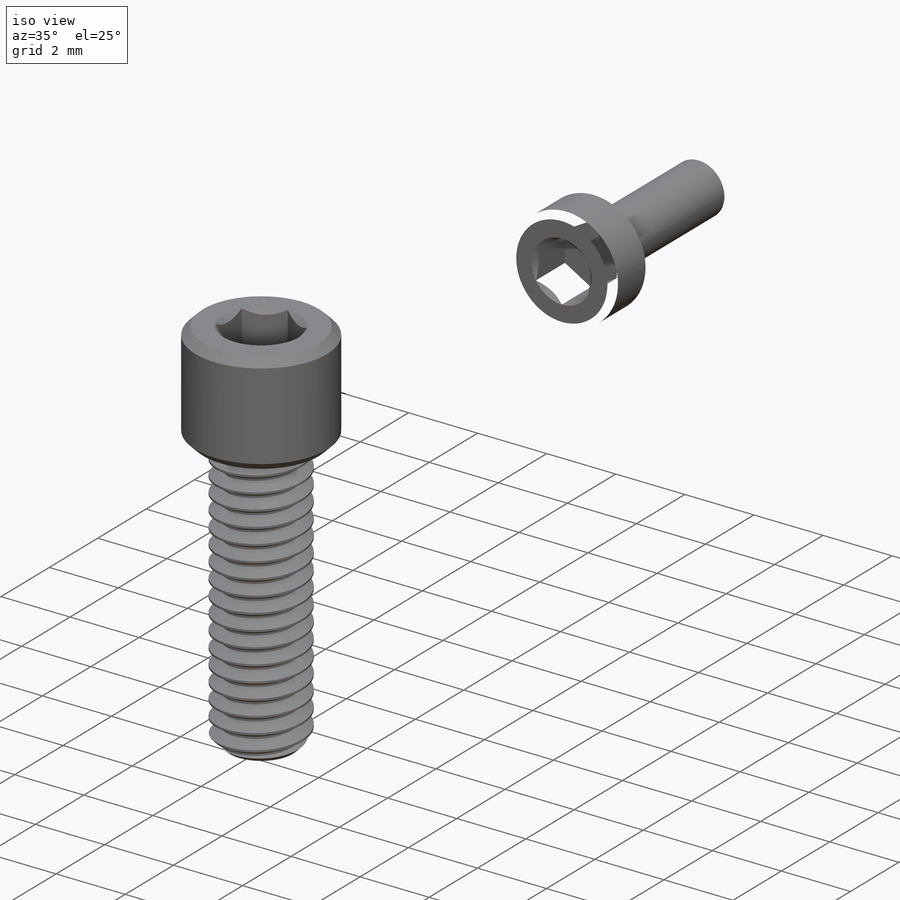
[diagram: iso view]
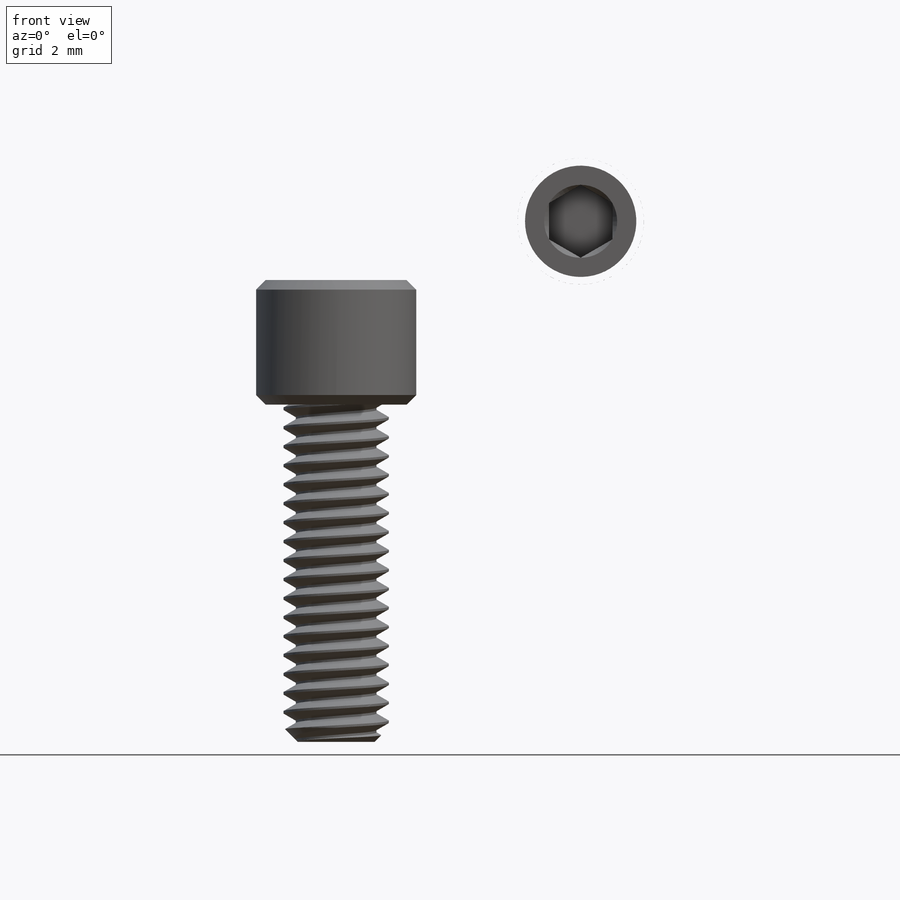
[diagram: front view]
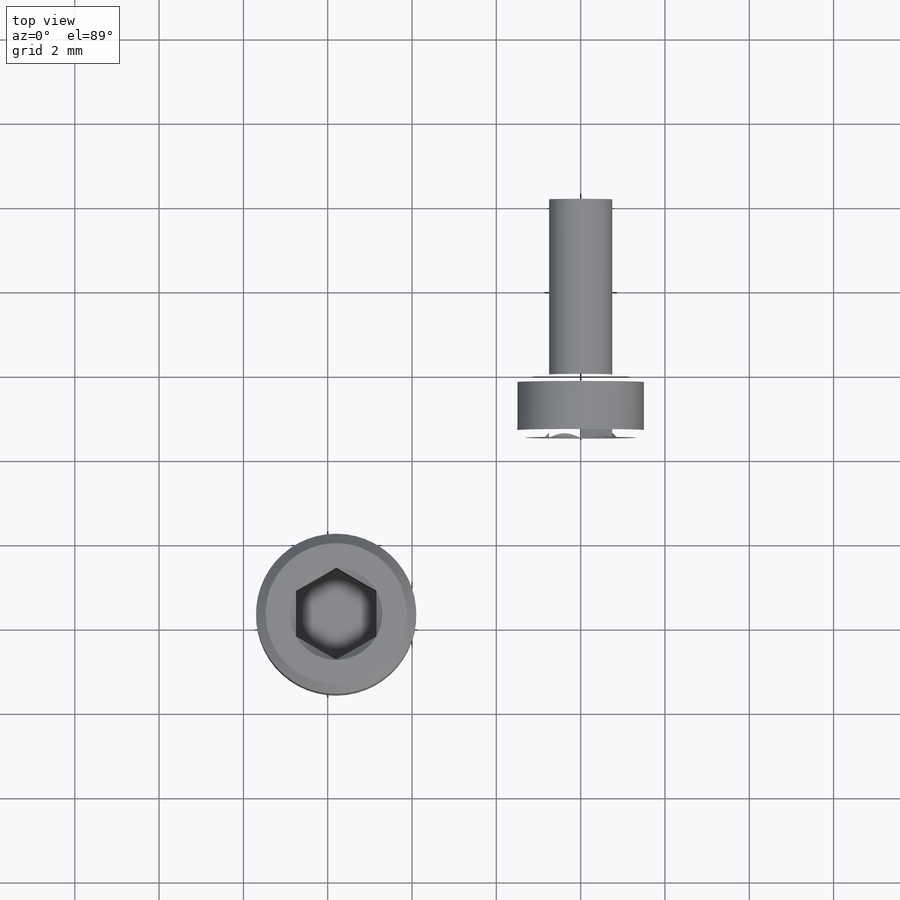
[diagram: top view]
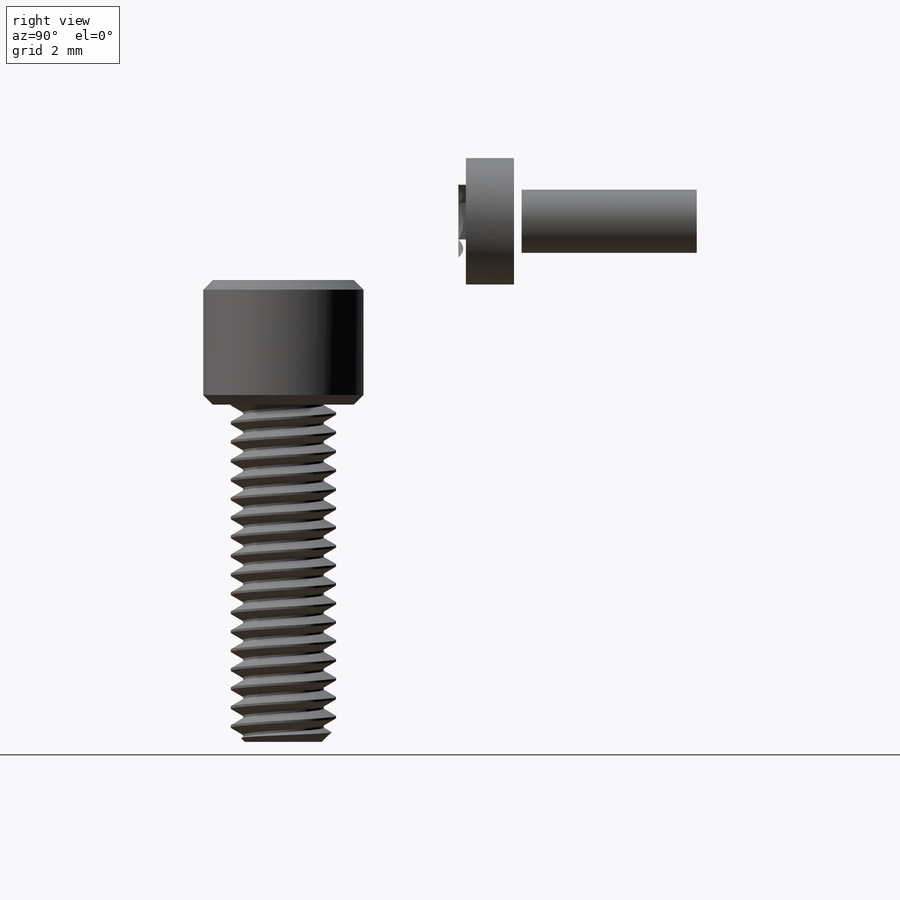
[diagram: right view]
SOLIDWORKS PART (.sldprt)
format: sldprt  version: not decoded by parser v0  size: 2,355,200 bytes
history: native  units: mm
features: sketch x32, cut_extrude x18, chamfer x11, extrude x5, plane x3, pattern_circular x3, cut_revolve x2, revolve x2, boolean_combine x2, pattern_linear x2, delete_body x2, material x1, helix x1, sweep x1 (+18 scaffold rows collapsed; 4 parser-record rows omitted)
feature tree (107):
  scaffold x18  (default folders/planes/origin — collapsed)
  material  "Material <not specified>"
  sketch  "Sketch1"  dims[Shaft dia A=5.0mm OD=19.05mm Shaft dia B=8.0mm bolt circle dia=14.0mm bolt head dia=3.0mm max inner bore=8.0mm OD small=35.56mm Shaft A small OD=19.05mm Shaft B small OD=19.05mm]
  sketch  "Sketch9"  dims[Lg=25.908mm Bore Lg=9.15mm middle hub Lg=5.5mm D1=1.054mm]
  sketch  "Sketch17"
  extrude  "Boss-Extrude1"  [1 undecoded]
  plane  "Plane2"  Offset=3.15mm screw offset=3.15mm
  parser-record x4  (decoder bookkeeping rows leaked as tree rows — omitted from the tree; the rows remain in map.json)
  sketch  "Sketch19"  dims[screw offset 3=2.65mm screw head dia=3.8mm screw dia=2.5mm screw offset 2=5.8mm D1=~2.956748mm D2=38.036mm]
  cut_revolve  "Cut-Revolve1"  Angle=360deg
  sketch  "Sketch21"  dims[screw length=8.0mm]
  revolve  "Revolve1"  Angle=360deg
  sketch  "Sketch22"  dims[D1=1.9mm]
  cut_extrude  "Cut-Extrude16"  Depth=2.365399mm
  sketch  "Sketch23"
  cut_extrude  "Cut-Extrude17"  [1 undecoded]
  sketch  "Sketch24"  dims[D1=0.0mm]
  helix  "Helix/Spiral1"  Pitch=8.45mm
  sketch  "Sketch25"  dims[c1.D1=~1.185245mm c2.D1=~61.891996deg c3.D1=~1.185245mm c4.D1=~61.891996deg c5.D1=~0.05625mm c5.D2=0.225mm c5.D3=~1.067782mm c6.D3=60.0deg]
  sweep  "Sweep1"
  sketch  "Sketch26"  dims[D1=0.0mm]
  cut_extrude  "Cut-Extrude18"  [1 undecoded]
  chamfer  "Chamfer1"  Distance=0.3375mm Angle=45deg
  chamfer  "Chamfer2"  Distance=0.228mm Angle=45deg
  boolean_combine  "Combine3"
  sketch  "Sketch20"  dims[D1=0.228mm]
  cut_extrude  "Cut-Extrude15"  [1 undecoded]
  plane  "Plane1"
  sketch  "Sketch27"  dims[D1=1.0mm]
  cut_extrude  "Cut-Extrude19"  [1 undecoded]
  sketch  "Sketch28"  dims[D1=1.5mm D2=1.5mm]
  cut_revolve  "Cut-Revolve2"  Angle=360deg
  sketch  "Sketch29"  dims[D1=1.5mm]
  revolve  "Revolve2"  Angle=360deg
  sketch  "Sketch30"  dims[D1=1.5mm]
  cut_extrude  "Cut-Extrude20"  Depth=1.2mm
  sketch  "Sketch31"
  cut_extrude  "Cut-Extrude21"  [1 undecoded]
  chamfer  "Chamfer3"  Distance=0.18mm Angle=45deg
  sketch  "Sketch32"  dims[D1=0.18mm]
  cut_extrude  "Cut-Extrude22"  [1 undecoded]
  pattern_circular  "CirPattern1"  Count=2 Angle=180deg
  pattern_circular  "CirPattern2"  Count=2 Angle=180deg
  sketch  "Sketch33"
  cut_extrude  "Cut-Extrude23"  [1 undecoded]
  sketch  "Sketch40"  dims[D1=1.5mm]
  extrude  "Boss-Extrude5"  [1 undecoded]
  chamfer  "Chamfer10"  Distance=0.15mm Angle=45deg
  chamfer  "Chamfer11"  Distance=0.15mm Angle=45deg
  sketch  "Sketch34"  dims[D1=6.5mm D2=1.0mm]
  cut_extrude  "Cut-Extrude24"  [1 undecoded]
  sketch  "Sketch35"
  extrude  "Boss-Extrude2"  [1 undecoded]
  plane  "Plane3"
  sketch  "Sketch36"  dims[D1=5.6mm]
  extrude  "Boss-Extrude3"  Depth=0.3162mm
  sketch  "Sketch37"
  extrude  "Boss-Extrude4"  [1 undecoded]
  boolean_combine  "Axis2"
  chamfer  "Chamfer4"  Distance=0.15mm Angle=45deg
  chamfer  "Chamfer5"  Distance=0.15mm Angle=45deg
  pattern_circular  "CirPattern3"  Count=2 Angle=180deg
  sketch  "Sketch38"
  cut_extrude  "Cut-Extrude25"  [1 undecoded]
  sketch  "Sketch39"
  cut_extrude  "Cut-Extrude26"  [1 undecoded]
  chamfer  "Chamfer6"  Distance=0.15mm Angle=45deg
  chamfer  "Chamfer7"  Distance=0.15mm Angle=45deg
  sketch  "Sketch42"  dims[D1=8.0mm]
  cut_extrude  "Cut-Extrude27"  [1 undecoded]
  chamfer  "Chamfer12"  Distance=0.15mm Angle=45deg
  pattern_linear  "LPattern2"  Count1=2 Count2=1 Spacing1=8mm Spacing2=2.54mm
  delete_body  "Body-Delete2"
  sketch  "Sketch47"
  cut_extrude  "Cut-Extrude31"  [1 undecoded]
  sketch  "Sketch48"  dims[D1=2.5mm]
  cut_extrude  "Cut-Extrude32"  [1 undecoded]
  sketch  "Sketch43"  dims[D2=3.8mm D1=8.0mm]
  cut_extrude  "Cut-Extrude28"  [1 undecoded]
  chamfer  "Chamfer13"  Distance=0.15mm Angle=45deg
  pattern_linear  "LPattern1"  Count1=2 Count2=1 Spacing1=8mm Spacing2=2.54mm
  delete_body  "Body-Delete1"
  sketch  "Sketch45"
  cut_extrude  "Cut-Extrude29"  [1 undecoded]
  sketch  "Sketch46"  dims[D1=2.5mm]
  cut_extrude  "Cut-Extrude30"  [1 undecoded]
  sketch  "Sketch49"
decode coverage: 45 of 81 modeling features carry decoded parameters
note: ~ marks probable driven/reference dimensions
note: 20 parameter values undecoded
summary: no parameter record found for 20 features
note: suppression state not decoded; provenance and decode notes live in map.json
